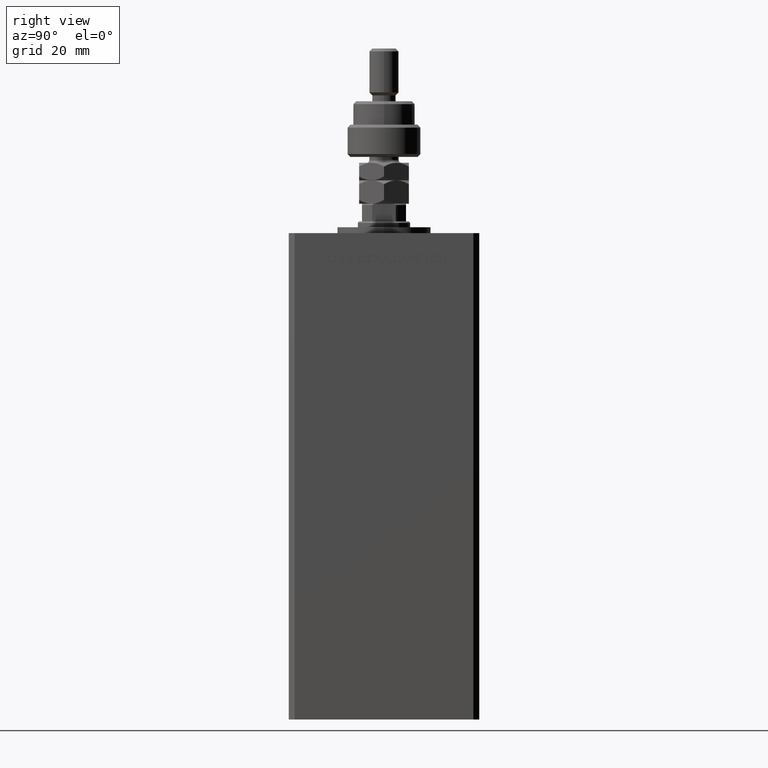
[diagram: clean part render]
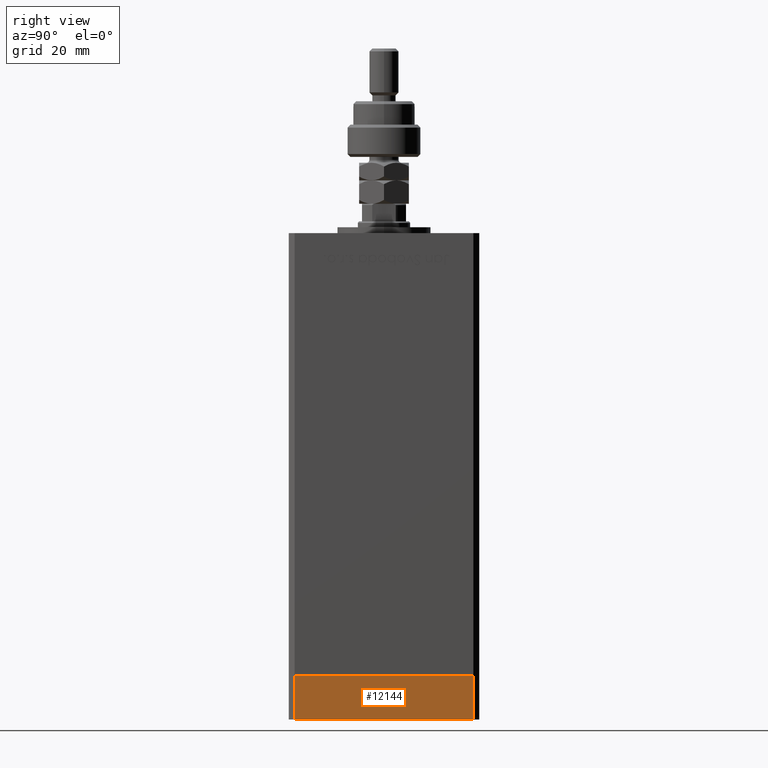
[diagram: same view with one face highlighted and labeled with its STEP entity id]
A machine part, right view. The second image highlights one B-rep face of the part: STEP entity #12144.
In plain terms, the highlighted planar face has unit normal (1, -0, 0).
Its self-contained STEP definition (entity closure, byte-faithful):
#321 = CARTESIAN_POINT ( 'NONE',  ( -37.50000000000001421, 30.49999999999998579, -15.00000000000000000 ) ) ;
#2214 = DIRECTION ( 'NONE',  ( 0.000000000000000000, 0.000000000000000000, 1.000000000000000000 ) ) ;
#2804 = CARTESIAN_POINT ( 'NONE',  ( -37.50000000000001421, 30.49999999999998579, -15.00000000000000000 ) ) ;
#3270 = CARTESIAN_POINT ( 'NONE',  ( -37.49999999999998579, -30.50000000000001421, 0.000000000000000000 ) ) ;
#5444 = VECTOR ( 'NONE', #49416, 1000.000000000000000 ) ;
#5566 = VECTOR ( 'NONE', #38899, 1000.000000000000000 ) ;
#6329 = ORIENTED_EDGE ( 'NONE', *, *, #23326, .F. ) ;
#6641 = AXIS2_PLACEMENT_3D ( 'NONE', #15706, #41649, #53272 ) ;
#7541 = VERTEX_POINT ( 'NONE', #321 ) ;
#9274 = VERTEX_POINT ( 'NONE', #3270 ) ;
#9648 = ORIENTED_EDGE ( 'NONE', *, *, #48932, .F. ) ;
#12144 = ADVANCED_FACE ( 'NONE', ( #20384 ), #19566, .T. ) ;
#15706 = CARTESIAN_POINT ( 'NONE',  ( -37.50000000000001421, 30.49999999999998579, -15.00000000000000000 ) ) ;
#15999 = LINE ( 'NONE', #54381, #5444 ) ;
#16078 = VERTEX_POINT ( 'NONE', #27297 ) ;
#16404 = ORIENTED_EDGE ( 'NONE', *, *, #45478, .T. ) ;
#19566 = PLANE ( 'NONE',  #6641 ) ;
#19620 = LINE ( 'NONE', #2804, #25107 ) ;
#20384 = FACE_OUTER_BOUND ( 'NONE', #36055, .T. ) ;
#21010 = CARTESIAN_POINT ( 'NONE',  ( -37.49999999999998579, -30.50000000000001421, -15.00000000000000000 ) ) ;
#21745 = VERTEX_POINT ( 'NONE', #21010 ) ;
#21784 = CARTESIAN_POINT ( 'NONE',  ( -37.50000000000001421, 30.49999999999998579, 0.000000000000000000 ) ) ;
#23326 = EDGE_CURVE ( 'NONE', #7541, #16078, #19620, .T. ) ;
#24166 = ORIENTED_EDGE ( 'NONE', *, *, #44390, .T. ) ;
#25107 = VECTOR ( 'NONE', #41422, 1000.000000000000000 ) ;
#27035 = LINE ( 'NONE', #48865, #30938 ) ;
#27297 = CARTESIAN_POINT ( 'NONE',  ( -37.50000000000001421, 30.49999999999998579, 0.000000000000000000 ) ) ;
#30938 = VECTOR ( 'NONE', #2214, 1000.000000000000000 ) ;
#35280 = LINE ( 'NONE', #21784, #5566 ) ;
#36055 = EDGE_LOOP ( 'NONE', ( #9648, #6329, #16404, #24166 ) ) ;
#38899 = DIRECTION ( 'NONE',  ( 4.550094363217855288E-16, -1.000000000000000000, 0.000000000000000000 ) ) ;
#41422 = DIRECTION ( 'NONE',  ( 0.000000000000000000, 0.000000000000000000, 1.000000000000000000 ) ) ;
#41649 = DIRECTION ( 'NONE',  ( -1.000000000000000000, -4.550094363217855288E-16, 0.000000000000000000 ) ) ;
#44390 = EDGE_CURVE ( 'NONE', #21745, #9274, #27035, .T. ) ;
#45478 = EDGE_CURVE ( 'NONE', #7541, #21745, #15999, .T. ) ;
#48865 = CARTESIAN_POINT ( 'NONE',  ( -37.49999999999998579, -30.50000000000001421, -15.00000000000000000 ) ) ;
#48932 = EDGE_CURVE ( 'NONE', #16078, #9274, #35280, .T. ) ;
#49416 = DIRECTION ( 'NONE',  ( 4.550094363217855288E-16, -1.000000000000000000, 0.000000000000000000 ) ) ;
#53272 = DIRECTION ( 'NONE',  ( 4.550094363217855288E-16, -1.000000000000000000, 0.000000000000000000 ) ) ;
#54381 = CARTESIAN_POINT ( 'NONE',  ( -37.50000000000001421, 30.49999999999998579, -15.00000000000000000 ) ) ;